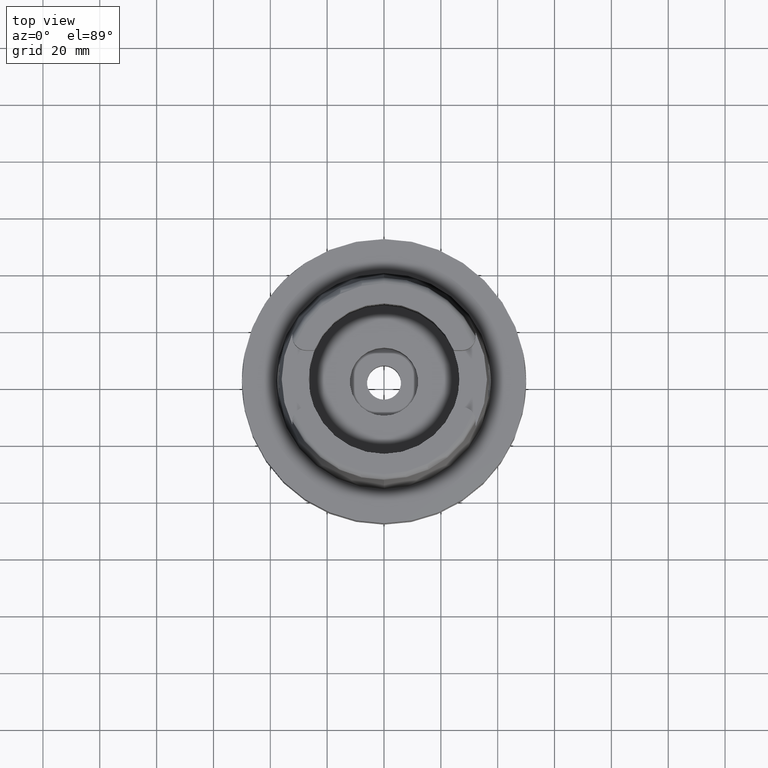
[diagram: clean part render]
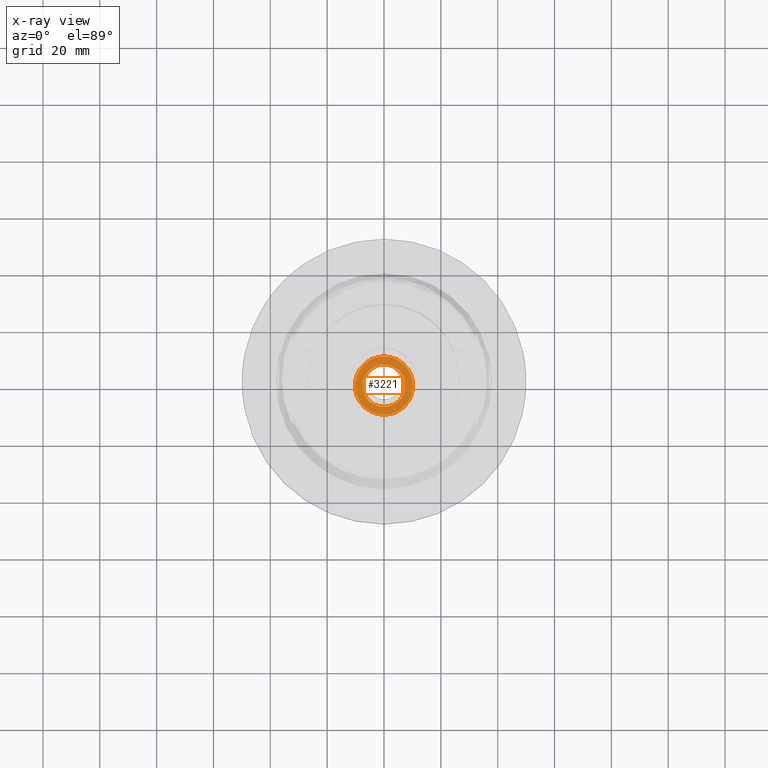
[diagram: x-ray — body ghosted, one internal face saturated and labeled with its STEP entity id]
A machine part, top view, then the same camera in x-ray: the body is ghosted and one INTERNAL B-rep face — a face not visible from any outside direction — is saturated and labeled: STEP entity #3221.
In plain terms, the highlighted planar face has unit normal (0, 0, 1).
Its self-contained STEP definition (entity closure, byte-faithful):
#967=CARTESIAN_POINT('',(0.E0,0.E0,-9.3E1));
#968=DIRECTION('',(0.E0,0.E0,1.E0));
#969=DIRECTION('',(0.E0,-1.E0,0.E0));
#970=AXIS2_PLACEMENT_3D('',#967,#968,#969);
#975=CARTESIAN_POINT('',(0.E0,0.E0,-9.3E1));
#976=DIRECTION('',(0.E0,0.E0,1.E0));
#977=DIRECTION('',(0.E0,1.E0,0.E0));
#978=AXIS2_PLACEMENT_3D('',#975,#976,#977);
#983=CARTESIAN_POINT('',(0.E0,0.E0,-9.3E1));
#984=DIRECTION('',(0.E0,0.E0,-1.E0));
#985=DIRECTION('',(0.E0,-1.E0,0.E0));
#986=AXIS2_PLACEMENT_3D('',#983,#984,#985);
#991=CARTESIAN_POINT('',(0.E0,0.E0,-9.3E1));
#992=DIRECTION('',(0.E0,0.E0,-1.E0));
#993=DIRECTION('',(0.E0,1.E0,0.E0));
#994=AXIS2_PLACEMENT_3D('',#991,#992,#993);
#2355=CARTESIAN_POINT('',(0.E0,7.5E0,-9.3E1));
#2356=VERTEX_POINT('',#2355);
#2357=CARTESIAN_POINT('',(0.E0,-7.5E0,-9.3E1));
#2358=VERTEX_POINT('',#2357);
#2359=CARTESIAN_POINT('',(0.E0,-1.025E1,-9.3E1));
#2360=CARTESIAN_POINT('',(0.E0,1.025E1,-9.3E1));
#2361=VERTEX_POINT('',#2359);
#2362=VERTEX_POINT('',#2360);
#3206=CARTESIAN_POINT('',(0.E0,0.E0,-9.3E1));
#3207=DIRECTION('',(0.E0,0.E0,1.E0));
#3208=DIRECTION('',(0.E0,1.E0,0.E0));
#3209=AXIS2_PLACEMENT_3D('',#3206,#3207,#3208);
#3210=PLANE('',#3209);
#3212=ORIENTED_EDGE('',*,*,#3211,.T.);
#3214=ORIENTED_EDGE('',*,*,#3213,.T.);
#3215=EDGE_LOOP('',(#3212,#3214));
#3216=FACE_OUTER_BOUND('',#3215,.F.);
#3217=ORIENTED_EDGE('',*,*,#3199,.T.);
#3218=ORIENTED_EDGE('',*,*,#3188,.T.);
#3219=EDGE_LOOP('',(#3217,#3218));
#3220=FACE_BOUND('',#3219,.F.);
#971=CIRCLE('',#970,1.025E1);
#979=CIRCLE('',#978,1.025E1);
#987=CIRCLE('',#986,7.5E0);
#995=CIRCLE('',#994,7.5E0);
#3188=EDGE_CURVE('',#2356,#2358,#995,.T.);
#3199=EDGE_CURVE('',#2358,#2356,#987,.T.);
#3211=EDGE_CURVE('',#2361,#2362,#971,.T.);
#3213=EDGE_CURVE('',#2362,#2361,#979,.T.);
#3221=ADVANCED_FACE('',(#3216,#3220),#3210,.F.);